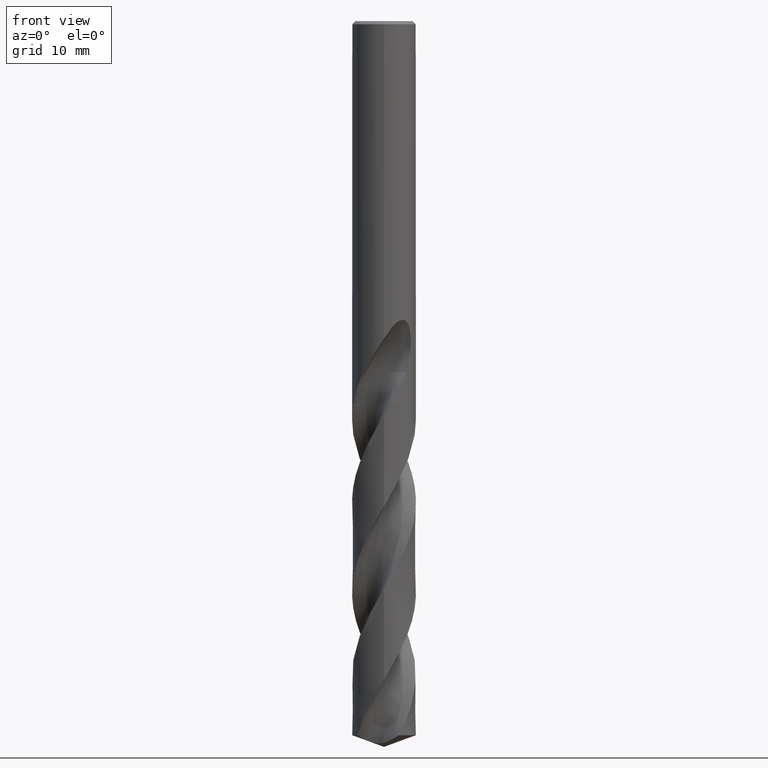
[diagram: clean part render]
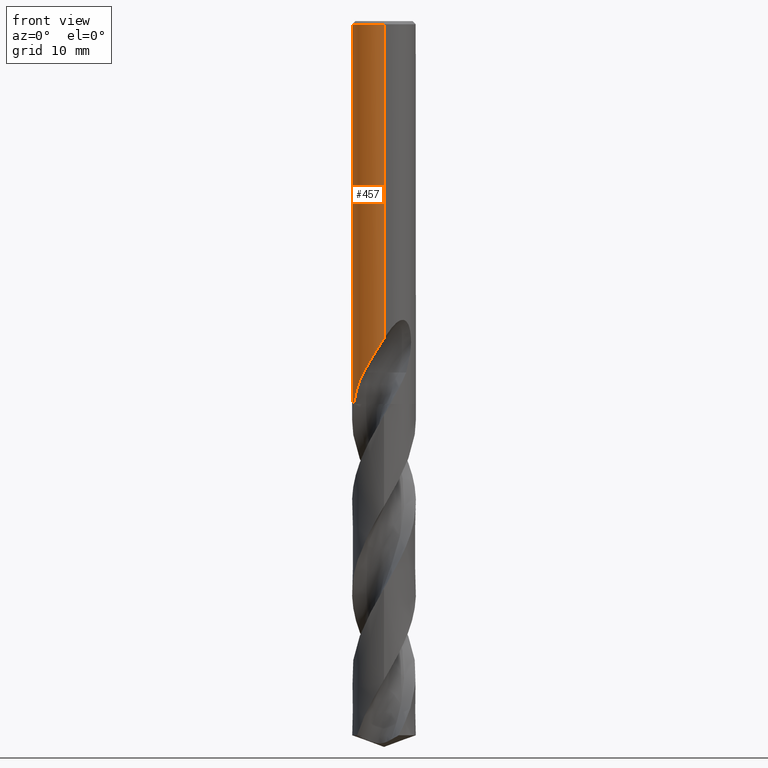
[diagram: same view with one face highlighted and labeled with its STEP entity id]
A machine part, front view. The second image highlights one B-rep face of the part: STEP entity #457.
In plain terms, the highlighted cylindrical surface (edge-blend (fillet) strip) has radius 4 mm, axis along (-0, -0, 1).
Its self-contained STEP definition (entity closure, byte-faithful):
#277=EDGE_CURVE('',#721,#377,#776,.T.);
#281=VERTEX_POINT('',#781);
#283=VERTEX_POINT('',#783);
#313=VERTEX_POINT('',#815);
#321=EDGE_CURVE('',#599,#365,#824,.T.);
#335=EDGE_CURVE('',#377,#313,#839,.T.);
#361=EDGE_CURVE('',#407,#367,#869,.T.);
#365=VERTEX_POINT('',#874);
#367=VERTEX_POINT('',#876);
#377=VERTEX_POINT('',#887);
#403=VERTEX_POINT('',#915);
#407=VERTEX_POINT('',#919);
#453=EDGE_CURVE('',#685,#599,#970,.T.);
#455=EDGE_CURVE('',#499,#283,#972,.T.);
#457=ADVANCED_FACE('',(#974),#975,.T.);
#483=VERTEX_POINT('',#1003);
#499=VERTEX_POINT('',#1020);
#507=VERTEX_POINT('',#1029);
#513=EDGE_CURVE('',#281,#743,#1035,.T.);
#575=EDGE_CURVE('',#367,#703,#1102,.T.);
#577=EDGE_CURVE('',#403,#281,#1104,.T.);
#585=EDGE_CURVE('',#483,#721,#1112,.T.);
#587=EDGE_CURVE('',#685,#715,#1114,.T.);
#589=EDGE_CURVE('',#283,#715,#1116,.T.);
#599=VERTEX_POINT('',#1127);
#625=EDGE_CURVE('',#313,#403,#1156,.T.);
#637=EDGE_CURVE('',#703,#483,#1169,.T.);
#651=EDGE_CURVE('',#743,#499,#1184,.T.);
#679=EDGE_CURVE('',#365,#507,#1215,.T.);
#685=VERTEX_POINT('',#1221);
#703=VERTEX_POINT('',#1240);
#715=VERTEX_POINT('',#1254);
#721=VERTEX_POINT('',#1260);
#741=EDGE_CURVE('',#507,#407,#1283,.T.);
#743=VERTEX_POINT('',#1285);
#776=B_SPLINE_CURVE_WITH_KNOTS('',3,(#1341,#1342,#1343,#1344,#1345,#1346,#1347,#1348,#1349,#1350,#1351,#1352,#1353,#1354),.UNSPECIFIED.,.F.,.F.,(4,2,2,2,2,2,4),(3.1414972576051,3.58983629155794,4.03817532551078,4.48651435946362,4.93338740522822,5.38026045099282,5.83106711565938),.UNSPECIFIED.);
#781=CARTESIAN_POINT('',(-6.37761657961682E-016,4.0,-34.0310253601033));
#783=CARTESIAN_POINT('',(-2.78030937116489,2.87573987012259,-44.053));
#815=CARTESIAN_POINT('',(-4.89842541528951E-016,4.0,-32.7128911336578));
#824=B_SPLINE_CURVE_WITH_KNOTS('',3,(#2294,#2295,#2296,#2297,#2298,#2299,#2300,#2301,#2302,#2303,#2304,#2305,#2306,#2307,#2308,#2309,#2310,#2311,#2312,#2313,#2314,#2315,#2316,#2317,#2318,#2319,#2320,#2321,#2322,#2323),.UNSPECIFIED.,.F.,.F.,(4,2,2,2,2,2,2,2,2,2,2,2,2,2,4),(0.0,1.9597762407695,3.02985967370596,3.99908599318602,5.1250937722548,6.47768674139874,7.65000215056726,8.18125540149219,8.56953673186899,8.93696441781943,9.40306833899536,10.0849972789282,11.0544394482058,11.6888355435201,12.3555427460073),.UNSPECIFIED.);
#839=LINE('',#2414,#2415);
#869=LINE('',#2697,#2698);
#874=CARTESIAN_POINT('',(1.18285448710148E-012,-4.0,-39.8010886237942));
#876=CARTESIAN_POINT('',(0.0,4.0,-32.0232688117743));
#887=CARTESIAN_POINT('',(1.76789376344218E-016,4.0,-32.5000801551881));
#915=CARTESIAN_POINT('',(-1.337052752443,3.76991908894403,-33.3720803908795));
#919=CARTESIAN_POINT('',(0.0,4.0,-0.399999999999999));
#970=B_SPLINE_CURVE_WITH_KNOTS('',3,(#4244,#4245,#4246,#4247,#4248,#4249,#4250,#4251,#4252,#4253,#4254,#4255),.UNSPECIFIED.,.F.,.F.,(4,2,2,2,2,4),(0.0,0.673281751932952,1.64337023256812,2.38350246427069,3.38728832690243,5.3568489101996),.UNSPECIFIED.);
#972=B_SPLINE_CURVE_WITH_KNOTS('',3,(#4258,#4259,#4260,#4261),.UNSPECIFIED.,.F.,.F.,(4,4),(0.0,2.29887959846366),.UNSPECIFIED.);
#974=FACE_OUTER_BOUND('',#4263,.T.);
#975=CYLINDRICAL_SURFACE('',#4264,4.0);
#1003=CARTESIAN_POINT('',(-0.562333990228013,3.9602753039952,-31.3171221986971));
#1020=CARTESIAN_POINT('',(-3.25456865325919,2.32546401417495,-41.862679091506));
#1029=CARTESIAN_POINT('',(4.89842541528951E-016,-4.0,-0.399999999999999));
#1035=LINE('',#4773,#4774);
#1102=B_SPLINE_CURVE_WITH_KNOTS('',3,(#5725,#5726,#5727,#5728,#5729,#5730,#5731,#5732,#5733,#5734,#5735,#5736,#5737,#5738,#5739,#5740,#5741,#5742,#5743,#5744,#5745,#5746,#5747,#5748,#5749,#5750,#5751),.UNSPECIFIED.,.F.,.F.,(4,2,3,2,2,2,2,2,2,2,2,2,4),(-0.543018145553855,-0.271509072776928,0.0,0.271509072776927,0.543018145553855,0.815414280910791,1.08781041626773,1.35870467547365,1.62959893467958,1.90093601549038,2.17227309630118,2.44361017711198,2.71494725792278),.UNSPECIFIED.);
#1104=B_SPLINE_CURVE_WITH_KNOTS('',3,(#5754,#5755,#5756,#5757,#5758,#5759,#5760,#5761,#5762,#5763,#5764,#5765,#5766,#5767,#5768,#5769),.UNSPECIFIED.,.F.,.F.,(4,2,2,2,2,2,2,4),(5.59330412183837,6.21519943861119,6.52611580040833,6.83703216220547,7.14794852400261,7.45886488579976,7.76904377517712,8.07922266455448),.UNSPECIFIED.);
#1112=CIRCLE('',#5793,4.0);
#1114=CIRCLE('',#5796,4.0);
#1116=B_SPLINE_CURVE_WITH_KNOTS('',3,(#5799,#5800,#5801,#5802,#5803,#5804,#5805,#5806),.UNSPECIFIED.,.F.,.F.,(4,2,2,4),(0.0,1.28011505187852,2.420678899847,4.38884524715765),.UNSPECIFIED.);
#1127=CARTESIAN_POINT('',(-2.54885976013372,-3.08274454393663,-44.053));
#1156=ELLIPSE('',#6607,4.45971372817144,4.0);
#1169=B_SPLINE_CURVE_WITH_KNOTS('',3,(#6625,#6626,#6627,#6628,#6629,#6630,#6631,#6632,#6633,#6634,#6635,#6636,#6637,#6638,#6639,#6640,#6641,#6642,#6643,#6644,#6645,#6646,#6647,#6648,#6649,#6650,#6651),.UNSPECIFIED.,.F.,.F.,(4,2,3,2,2,2,2,2,2,2,2,2,4),(-0.543018145553855,-0.271509072776928,0.0,0.271509072776927,0.543018145553855,0.815414280910791,1.08781041626773,1.35870467547365,1.62959893467958,1.90093601549038,2.17227309630118,2.44361017711198,2.71494725792278),.UNSPECIFIED.);
#1184=B_SPLINE_CURVE_WITH_KNOTS('',3,(#6726,#6727,#6728,#6729,#6730,#6731,#6732,#6733,#6734,#6735,#6736,#6737,#6738,#6739,#6740,#6741,#6742,#6743,#6744,#6745,#6746,#6747,#6748,#6749,#6750,#6751,#6752,#6753,#6754,#6755),.UNSPECIFIED.,.F.,.F.,(4,2,2,2,2,2,2,2,2,2,2,2,2,2,4),(0.0,1.95977624076947,3.02985967370601,3.99908599318628,5.12509377225497,6.47768674139893,7.65000215056745,8.18125540149243,8.56953673186918,8.93696441781958,9.40306833899562,10.0849972789289,11.0544394482072,11.6888355435218,12.3555427460094),.UNSPECIFIED.);
#1215=LINE('',#6910,#6911);
#1221=CARTESIAN_POINT('',(-3.83976227819939,-1.12081472461644,-48.0));
#1240=CARTESIAN_POINT('',(-0.486378944383045,3.97031932248035,-31.6432837483006));
#1254=CARTESIAN_POINT('',(-0.794661376557668,3.92026954387163,-48.0));
#1260=CARTESIAN_POINT('',(-1.0350734039088,3.86375763325298,-31.3171221986971));
#1283=CIRCLE('',#8768,4.0);
#1285=CARTESIAN_POINT('',(-1.18618515617536E-012,4.0,-39.8010886237942));
#1341=CARTESIAN_POINT('',(-0.944485730255266,3.88689422358574,-30.8721937017831));
#1342=CARTESIAN_POINT('',(-1.00507715869677,3.87217097566101,-31.0179579829107));
#1343=CARTESIAN_POINT('',(-1.03510901790186,3.86374809233964,-31.1768555160818));
#1344=CARTESIAN_POINT('',(-1.03510901790186,3.86374809233964,-31.4757482053837));
#1345=CARTESIAN_POINT('',(-1.00507715869677,3.87217097566101,-31.6346457385549));
#1346=CARTESIAN_POINT('',(-0.883894301813808,3.90161747151052,-31.9261743008101));
#1347=CARTESIAN_POINT('',(-0.792777739201659,3.92209884636082,-32.0588741566082));
#1348=CARTESIAN_POINT('',(-0.583167230532526,3.95868636589293,-32.2680863721804));
#1349=CARTESIAN_POINT('',(-0.45058383496046,3.97722069531043,-32.3588815936827));
#1350=CARTESIAN_POINT('',(-0.159473350781571,3.99948477939054,-32.4795403751275));
#1351=CARTESIAN_POINT('',(-0.000897992260163127,4.00277248724098,-32.5093686300866));
#1352=CARTESIAN_POINT('',(0.298123804149289,3.99170426461769,-32.5093686300866));
#1353=CARTESIAN_POINT('',(0.457309150143188,3.97650554840773,-32.479068217488));
#1354=CARTESIAN_POINT('',(0.603028766367665,3.9542832861257,-32.4183446035468));
#2294=CARTESIAN_POINT('',(-2.54885976013373,-3.08274454393663,-44.053));
#2295=CARTESIAN_POINT('',(-2.28500523660261,-3.30090345005828,-43.4966417767988));
#2296=CARTESIAN_POINT('',(-1.98163231588754,-3.49483155995579,-42.977936421169));
#2297=CARTESIAN_POINT('',(-1.45264038690853,-3.73253113273964,-42.1114036522165));
#2298=CARTESIAN_POINT('',(-1.26228426683797,-3.80090830680973,-41.8065283302373));
#2299=CARTESIAN_POINT('',(-0.893778878987868,-3.90310035133814,-41.2163687713546));
#2300=CARTESIAN_POINT('',(-0.717274980064561,-3.93920455800776,-40.9338353559214));
#2301=CARTESIAN_POINT('',(-0.335218398320563,-3.99131183045807,-40.3249008687613));
#2302=CARTESIAN_POINT('',(-0.12647439608519,-4.00354517408276,-39.9937333591077));
#2303=CARTESIAN_POINT('',(0.337092631504076,-3.99379417253619,-39.2852567198373));
#2304=CARTESIAN_POINT('',(0.611941054861158,-3.96363461880696,-38.8821257542007));
#2305=CARTESIAN_POINT('',(1.14195068256936,-3.84183599193105,-38.2173906398542));
#2306=CARTESIAN_POINT('',(1.43518376737336,-3.74904084478621,-37.8930259656217));
#2307=CARTESIAN_POINT('',(1.87898919238024,-3.53454780533532,-37.5892910671245));
#2308=CARTESIAN_POINT('',(2.02589175203401,-3.45357173492743,-37.5142260075858));
#2309=CARTESIAN_POINT('',(2.28329880223289,-3.28684001880263,-37.4565626198684));
#2310=CARTESIAN_POINT('',(2.38887588461982,-3.21090914700582,-37.4554859280565));
#2311=CARTESIAN_POINT('',(2.58551889986571,-3.05450740730474,-37.5059535003711));
#2312=CARTESIAN_POINT('',(2.67152074136919,-2.9789684922271,-37.5532713078944));
#2313=CARTESIAN_POINT('',(2.8465335331701,-2.81343086569157,-37.7013232644774));
#2314=CARTESIAN_POINT('',(2.92750237022739,-2.72764511666502,-37.8106329899809));
#2315=CARTESIAN_POINT('',(3.09335272716445,-2.54032566393318,-38.1099569518953));
#2316=CARTESIAN_POINT('',(3.17262589307932,-2.43831682967145,-38.3319668721969));
#2317=CARTESIAN_POINT('',(3.32169614375787,-2.233484397464,-38.953125946192));
#2318=CARTESIAN_POINT('',(3.37558848211908,-2.14623565430961,-39.3955071231947));
#2319=CARTESIAN_POINT('',(3.40226299691169,-2.10356902640446,-40.21424616535));
#2320=CARTESIAN_POINT('',(3.39599104218287,-2.1139685132873,-40.5403087544243));
#2321=CARTESIAN_POINT('',(3.35169145718829,-2.18356392775092,-41.2020529092011));
#2322=CARTESIAN_POINT('',(3.31213718412786,-2.24489483106254,-41.5352437340999));
#2323=CARTESIAN_POINT('',(3.25456865325918,-2.32546401417496,-41.862679091506));
#2414=CARTESIAN_POINT('',(-4.89842541528951E-016,4.0,-42.0));
#2415=VECTOR('',#8851,1.0);
#2697=CARTESIAN_POINT('',(-4.89842541528951E-016,4.0,-42.0));
#2698=VECTOR('',#8900,1.0);
#4244=CARTESIAN_POINT('',(-3.8397622781994,-1.12081472461644,-48.0));
#4245=CARTESIAN_POINT('',(-3.80832559864099,-1.22851261051058,-47.8056279562693));
#4246=CARTESIAN_POINT('',(-3.77216140950126,-1.33556996582235,-47.6116523734673));
#4247=CARTESIAN_POINT('',(-3.67205240250782,-1.59465138268647,-47.1394654567186));
#4248=CARTESIAN_POINT('',(-3.6063084448928,-1.7379050974947,-46.8798371345488));
#4249=CARTESIAN_POINT('',(-3.47330951566124,-1.98774354986488,-46.3937512531807));
#4250=CARTESIAN_POINT('',(-3.41232868204722,-2.09032213416337,-46.1833227799533));
#4251=CARTESIAN_POINT('',(-3.26298928591197,-2.31896745804228,-45.6789622788235));
#4252=CARTESIAN_POINT('',(-3.19371862974878,-2.41137662429,-45.4382280781839));
#4253=CARTESIAN_POINT('',(-2.96971512439359,-2.6901503290018,-44.8007407979937));
#4254=CARTESIAN_POINT('',(-2.78667457952837,-2.88611565857838,-44.4202380782108));
#4255=CARTESIAN_POINT('',(-2.54885976013372,-3.08274454393663,-44.053));
#4258=CARTESIAN_POINT('',(-3.2545686533118,2.32546401410131,-41.862679091535));
#4259=CARTESIAN_POINT('',(-3.12561195037748,2.50594345410102,-42.5961657022424));
#4260=CARTESIAN_POINT('',(-2.9701846549125,2.69216553635172,-43.3340172614407));
#4261=CARTESIAN_POINT('',(-2.78030937116489,2.87573987012259,-44.053));
#4263=EDGE_LOOP('',(#8984,#8985,#8986,#8987,#8988,#8989,#8990,#8991,#8992,#8993,#8994,#8995,#8996,#8997,#8998,#8999,#9000));
#4264=AXIS2_PLACEMENT_3D('',#9001,#9002,#9003);
#4773=CARTESIAN_POINT('',(-4.89842541528951E-016,4.0,-42.0));
#4774=VECTOR('',#9050,1.0);
#5725=CARTESIAN_POINT('',(0.665279195004375,3.9442874632428,-30.8137529884524));
#5726=CARTESIAN_POINT('',(0.72877088492158,3.9335783806135,-30.8773526603125));
#5727=CARTESIAN_POINT('',(0.783944488018489,3.92260552826083,-30.957920893425));
#5728=CARTESIAN_POINT('',(0.857267073993339,3.90723639918054,-31.134802544027));
#5729=CARTESIAN_POINT('',(0.875400981188567,3.90303383563787,-31.2311389883278));
#5730=CARTESIAN_POINT('',(0.875400981188567,3.90303383563787,-31.3216420125868));
#5731=CARTESIAN_POINT('',(0.875400981188567,3.90303383563787,-31.4121450368458));
#5732=CARTESIAN_POINT('',(0.857267073993339,3.90723639918054,-31.5084814811466));
#5733=CARTESIAN_POINT('',(0.783944488018488,3.92260552826083,-31.6853631317485));
#5734=CARTESIAN_POINT('',(0.728770884921581,3.9335783806135,-31.765931364861));
#5735=CARTESIAN_POINT('',(0.601580067811904,3.95503153411898,-31.8933384986505));
#5736=CARTESIAN_POINT('',(0.520902117238449,3.96693827151805,-31.9487071231089));
#5737=CARTESIAN_POINT('',(0.343752086871948,3.98619778335453,-32.0223037477669));
#5738=CARTESIAN_POINT('',(0.247255556938652,3.99338316413851,-32.0405166027747));
#5739=CARTESIAN_POINT('',(0.0662974670001867,4.00046977119903,-32.0405166027747));
#5740=CARTESIAN_POINT('',(-0.0299674229107091,4.00086780861984,-32.0224830783564));
#5741=CARTESIAN_POINT('',(-0.206991592502204,3.99562207288533,-31.9491870835923));
#5742=CARTESIAN_POINT('',(-0.287758268875903,3.99014940483369,-31.8939303320089));
#5743=CARTESIAN_POINT('',(-0.415384305359873,3.97889009382894,-31.7664425414649));
#5744=CARTESIAN_POINT('',(-0.470753835570468,3.9723749730993,-31.6856442592887));
#5745=CARTESIAN_POINT('',(-0.544239101864661,3.96297563900076,-31.5084730190186));
#5746=CARTESIAN_POINT('',(-0.562348199187247,3.96027328638705,-31.4120877061904));
#5747=CARTESIAN_POINT('',(-0.562348199187247,3.96027328638705,-31.2311963189832));
#5748=CARTESIAN_POINT('',(-0.544239101864661,3.96297563900076,-31.134811006155));
#5749=CARTESIAN_POINT('',(-0.470753835570468,3.9723749730993,-30.9576397658849));
#5750=CARTESIAN_POINT('',(-0.415384305359873,3.97889009382894,-30.8768414837086));
#5751=CARTESIAN_POINT('',(-0.351519173230209,3.98452434687649,-30.8130455309993));
#5754=CARTESIAN_POINT('',(-1.53169074080201,3.69512157777541,-33.0291469804961));
#5755=CARTESIAN_POINT('',(-1.44828662161398,3.72969396308271,-33.2292685117474));
#5756=CARTESIAN_POINT('',(-1.3235119204923,3.77766697431007,-33.4106519059977));
#5757=CARTESIAN_POINT('',(-1.10876972720289,3.84398770228913,-33.6255223555534));
#5758=CARTESIAN_POINT('',(-1.02784628500841,3.86675406900514,-33.6929304922165));
#5759=CARTESIAN_POINT('',(-0.851215741256186,3.9094356085587,-33.8121513963803));
#5760=CARTESIAN_POINT('',(-0.755506440008018,3.92931563110609,-33.8639734861066));
#5761=CARTESIAN_POINT('',(-0.55516132520436,3.96258844897707,-33.9475385932463));
#5762=CARTESIAN_POINT('',(-0.450345578096092,3.97598591776774,-33.9793474763458));
#5763=CARTESIAN_POINT('',(-0.238765831475676,3.99427916347003,-34.0212208804589));
#5764=CARTESIAN_POINT('',(-0.131998351317953,3.99916459194608,-34.0312723335086));
#5765=CARTESIAN_POINT('',(0.0750281946656646,4.00063255933723,-34.0312723335086));
#5766=CARTESIAN_POINT('',(0.181611397509719,3.99727906083033,-34.0212676362976));
#5767=CARTESIAN_POINT('',(0.392937729655654,3.98206259750675,-33.9795209106323));
#5768=CARTESIAN_POINT('',(0.497684032548134,3.97021008398904,-33.9477911393989));
#5769=CARTESIAN_POINT('',(0.597825841435798,3.9550732310934,-33.9060826866649));
#5793=AXIS2_PLACEMENT_3D('',#9108,#9109,#9110);
#5796=AXIS2_PLACEMENT_3D('',#9111,#9112,#9113);
#5799=CARTESIAN_POINT('',(-2.78030937116489,2.87573987012259,-44.053));
#5800=CARTESIAN_POINT('',(-2.63461355335431,3.01660081926714,-44.428510443878));
#5801=CARTESIAN_POINT('',(-2.48046719968615,3.14554869944356,-44.7836922176579));
#5802=CARTESIAN_POINT('',(-2.14457341325328,3.38205118049659,-45.4779420889589));
#5803=CARTESIAN_POINT('',(-1.97756721723794,3.48289751168457,-45.8057329666932));
#5804=CARTESIAN_POINT('',(-1.482340474819,3.73172710444276,-46.7685080932318));
#5805=CARTESIAN_POINT('',(-1.14348591519144,3.84956078649012,-47.3853515460967));
#5806=CARTESIAN_POINT('',(-0.794661376557649,3.92026954387164,-48.0));
#6607=AXIS2_PLACEMENT_3D('',#9150,#9151,#9152);
#6625=CARTESIAN_POINT('',(0.665279195004375,3.9442874632428,-30.8137529884524));
#6626=CARTESIAN_POINT('',(0.72877088492158,3.9335783806135,-30.8773526603125));
#6627=CARTESIAN_POINT('',(0.783944488018489,3.92260552826083,-30.957920893425));
#6628=CARTESIAN_POINT('',(0.857267073993339,3.90723639918054,-31.134802544027));
#6629=CARTESIAN_POINT('',(0.875400981188567,3.90303383563787,-31.2311389883278));
#6630=CARTESIAN_POINT('',(0.875400981188567,3.90303383563787,-31.3216420125868));
#6631=CARTESIAN_POINT('',(0.875400981188567,3.90303383563787,-31.4121450368458));
#6632=CARTESIAN_POINT('',(0.857267073993339,3.90723639918054,-31.5084814811466));
#6633=CARTESIAN_POINT('',(0.783944488018488,3.92260552826083,-31.6853631317485));
#6634=CARTESIAN_POINT('',(0.728770884921581,3.9335783806135,-31.765931364861));
#6635=CARTESIAN_POINT('',(0.601580067811904,3.95503153411898,-31.8933384986505));
#6636=CARTESIAN_POINT('',(0.520902117238449,3.96693827151805,-31.9487071231089));
#6637=CARTESIAN_POINT('',(0.343752086871948,3.98619778335453,-32.0223037477669));
#6638=CARTESIAN_POINT('',(0.247255556938652,3.99338316413851,-32.0405166027747));
#6639=CARTESIAN_POINT('',(0.0662974670001867,4.00046977119903,-32.0405166027747));
#6640=CARTESIAN_POINT('',(-0.0299674229107091,4.00086780861984,-32.0224830783564));
#6641=CARTESIAN_POINT('',(-0.206991592502204,3.99562207288533,-31.9491870835923));
#6642=CARTESIAN_POINT('',(-0.287758268875903,3.99014940483369,-31.8939303320089));
#6643=CARTESIAN_POINT('',(-0.415384305359873,3.97889009382894,-31.7664425414649));
#6644=CARTESIAN_POINT('',(-0.470753835570468,3.9723749730993,-31.6856442592887));
#6645=CARTESIAN_POINT('',(-0.544239101864661,3.96297563900076,-31.5084730190186));
#6646=CARTESIAN_POINT('',(-0.562348199187247,3.96027328638705,-31.4120877061904));
#6647=CARTESIAN_POINT('',(-0.562348199187247,3.96027328638705,-31.2311963189832));
#6648=CARTESIAN_POINT('',(-0.544239101864661,3.96297563900076,-31.134811006155));
#6649=CARTESIAN_POINT('',(-0.470753835570468,3.9723749730993,-30.9576397658849));
#6650=CARTESIAN_POINT('',(-0.415384305359873,3.97889009382894,-30.8768414837086));
#6651=CARTESIAN_POINT('',(-0.351519173230209,3.98452434687649,-30.8130455309993));
#6726=CARTESIAN_POINT('',(2.54885976013372,3.08274454393663,-44.053));
#6727=CARTESIAN_POINT('',(2.28500523660261,3.30090345005828,-43.4966417767988));
#6728=CARTESIAN_POINT('',(1.98163231588755,3.49483155995579,-42.977936421169));
#6729=CARTESIAN_POINT('',(1.45264038690851,3.73253113273964,-42.1114036522164));
#6730=CARTESIAN_POINT('',(1.26228426683794,3.80090830680974,-41.8065283302372));
#6731=CARTESIAN_POINT('',(0.893778878987872,3.90310035133813,-41.2163687713547));
#6732=CARTESIAN_POINT('',(0.717274980064568,3.93920455800775,-40.9338353559214));
#6733=CARTESIAN_POINT('',(0.33521839832061,3.99131183045806,-40.3249008687614));
#6734=CARTESIAN_POINT('',(0.126474396085212,4.00354517408276,-39.9937333591078));
#6735=CARTESIAN_POINT('',(-0.337092631504132,3.99379417253619,-39.2852567198373));
#6736=CARTESIAN_POINT('',(-0.611941054861174,3.96363461880695,-38.8821257542007));
#6737=CARTESIAN_POINT('',(-1.14195068256935,3.84183599193105,-38.2173906398542));
#6738=CARTESIAN_POINT('',(-1.43518376737336,3.74904084478621,-37.8930259656217));
#6739=CARTESIAN_POINT('',(-1.87898919238026,3.53454780533531,-37.5892910671245));
#6740=CARTESIAN_POINT('',(-2.02589175203402,3.45357173492742,-37.5142260075858));
#6741=CARTESIAN_POINT('',(-2.28329880223286,3.28684001880265,-37.4565626198684));
#6742=CARTESIAN_POINT('',(-2.38887588461981,3.21090914700583,-37.4554859280565));
#6743=CARTESIAN_POINT('',(-2.58551889986573,3.05450740730473,-37.5059535003711));
#6744=CARTESIAN_POINT('',(-2.67152074136922,2.97896849222708,-37.5532713078944));
#6745=CARTESIAN_POINT('',(-2.8465335331701,2.81343086569157,-37.7013232644774));
#6746=CARTESIAN_POINT('',(-2.92750237022738,2.72764511666503,-37.8106329899809));
#6747=CARTESIAN_POINT('',(-3.09335272716449,2.54032566393313,-38.1099569518954));
#6748=CARTESIAN_POINT('',(-3.17262589307935,2.43831682967142,-38.331966872197));
#6749=CARTESIAN_POINT('',(-3.32169614375785,2.23348439746403,-38.953125946192));
#6750=CARTESIAN_POINT('',(-3.37558848211908,2.14623565430961,-39.3955071231946));
#6751=CARTESIAN_POINT('',(-3.40226299691169,2.10356902640446,-40.21424616535));
#6752=CARTESIAN_POINT('',(-3.39599104218287,2.1139685132873,-40.5403087544243));
#6753=CARTESIAN_POINT('',(-3.35169145718829,2.18356392775092,-41.2020529092011));
#6754=CARTESIAN_POINT('',(-3.31213718412787,2.24489483106254,-41.5352437340999));
#6755=CARTESIAN_POINT('',(-3.25456865325918,2.32546401417496,-41.862679091506));
#6910=CARTESIAN_POINT('',(4.89842541528951E-016,-4.0,-42.0));
#6911=VECTOR('',#9225,1.0);
#8768=AXIS2_PLACEMENT_3D('',#9277,#9278,#9279);
#8851=DIRECTION('',(0.0,0.0,-1.0));
#8900=DIRECTION('',(0.0,0.0,-1.0));
#8984=ORIENTED_EDGE('',*,*,#361,.T.);
#8985=ORIENTED_EDGE('',*,*,#575,.T.);
#8986=ORIENTED_EDGE('',*,*,#637,.T.);
#8987=ORIENTED_EDGE('',*,*,#585,.T.);
#8988=ORIENTED_EDGE('',*,*,#277,.T.);
#8989=ORIENTED_EDGE('',*,*,#335,.T.);
#8990=ORIENTED_EDGE('',*,*,#625,.T.);
#8991=ORIENTED_EDGE('',*,*,#577,.T.);
#8992=ORIENTED_EDGE('',*,*,#513,.T.);
#8993=ORIENTED_EDGE('',*,*,#651,.T.);
#8994=ORIENTED_EDGE('',*,*,#455,.T.);
#8995=ORIENTED_EDGE('',*,*,#589,.T.);
#8996=ORIENTED_EDGE('',*,*,#587,.F.);
#8997=ORIENTED_EDGE('',*,*,#453,.T.);
#8998=ORIENTED_EDGE('',*,*,#321,.T.);
#8999=ORIENTED_EDGE('',*,*,#679,.T.);
#9000=ORIENTED_EDGE('',*,*,#741,.T.);
#9001=CARTESIAN_POINT('',(0.0,0.0,-42.0));
#9002=DIRECTION('',(-0.0,-0.0,1.0));
#9003=DIRECTION('',(0.0,1.0,0.0));
#9050=DIRECTION('',(0.0,0.0,-1.0));
#9108=CARTESIAN_POINT('',(0.0,0.0,-31.3171221986971));
#9109=DIRECTION('',(0.0,-0.0,1.0));
#9110=DIRECTION('',(0.0,1.0,0.0));
#9111=CARTESIAN_POINT('',(0.0,0.0,-48.0));
#9112=DIRECTION('',(0.0,0.0,-1.0));
#9113=DIRECTION('',(0.0,1.0,0.0));
#9150=CARTESIAN_POINT('',(0.0,0.0,-32.7128911336578));
#9151=DIRECTION('',(-0.442195774284071,0.0,0.896918556617774));
#9152=DIRECTION('',(0.896918556617774,-0.0,0.442195774284071));
#9225=DIRECTION('',(-0.0,-0.0,1.0));
#9277=CARTESIAN_POINT('',(0.0,0.0,-0.399999999999999));
#9278=DIRECTION('',(0.0,0.0,-1.0));
#9279=DIRECTION('',(0.0,1.0,0.0));